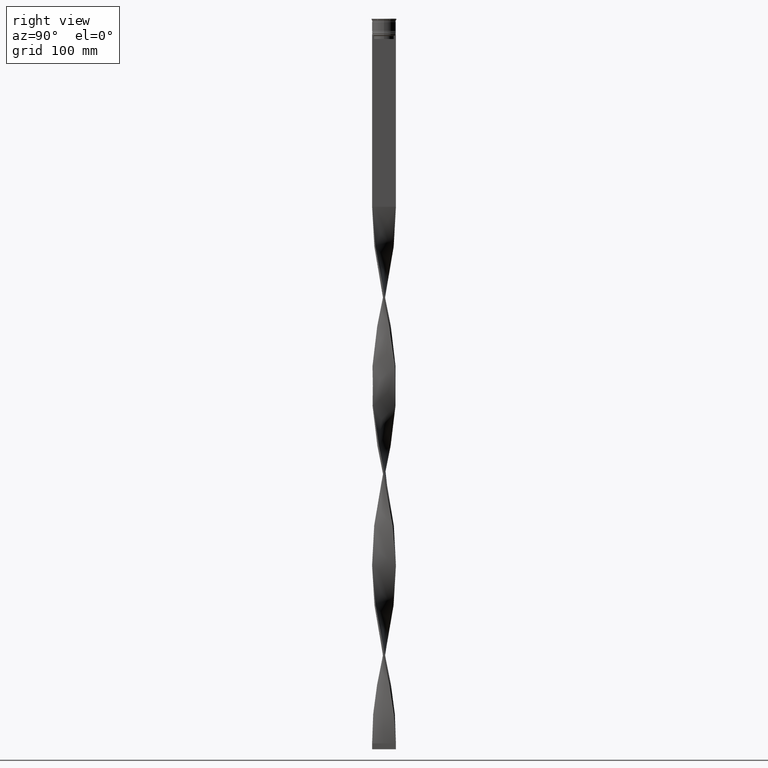
[diagram: clean part render]
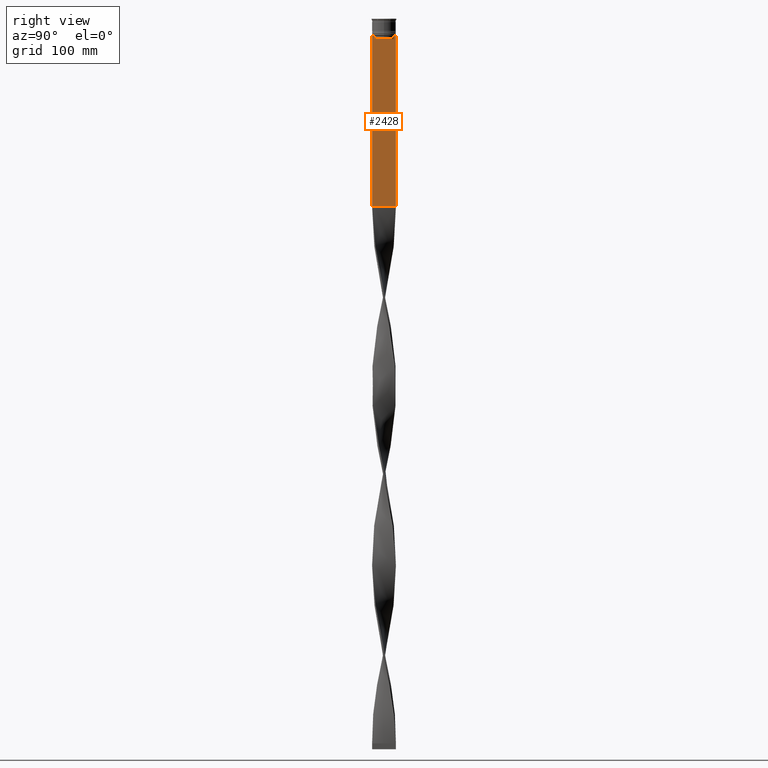
[diagram: same view with one face highlighted and labeled with its STEP entity id]
A machine part, right view. The second image highlights one B-rep face of the part: STEP entity #2428.
In plain terms, the highlighted planar face has unit normal (-1, 0, 0).
Its self-contained STEP definition (entity closure, byte-faithful):
#74 = EDGE_CURVE ( 'NONE', #860, #125, #2950, .T. ) ;
#96 = CARTESIAN_POINT ( 'NONE',  ( 0.7500000000000001110, -10.00000000000000533, -14.00000000000000178 ) ) ;
#119 = CARTESIAN_POINT ( 'NONE',  ( 0.7500000000000001110, -8.366450860430608927, -17.00000000000000000 ) ) ;
#125 = VERTEX_POINT ( 'NONE', #1736 ) ;
#173 = DIRECTION ( 'NONE',  ( 0.000000000000000000, 0.000000000000000000, 1.000000000000000000 ) ) ;
#194 = LINE ( 'NONE', #4341, #4361 ) ;
#202 = CARTESIAN_POINT ( 'NONE',  ( 0.7500000000000002220, 9.999999999999998224, -157.9999999999999716 ) ) ;
#226 = CARTESIAN_POINT ( 'NONE',  ( 0.7500000000000001110, -10.00000000000000533, -14.00000000000000178 ) ) ;
#366 = VECTOR ( 'NONE', #407, 1000.000000000000000 ) ;
#388 = CARTESIAN_POINT ( 'NONE',  ( 0.7500000000000001110, -8.533766903463440912, -14.33335220807192023 ) ) ;
#407 = DIRECTION ( 'NONE',  ( 0.000000000000000000, -1.000000000000000000, 0.000000000000000000 ) ) ;
#408 = DIRECTION ( 'NONE',  ( -0.000000000000000000, -0.000000000000000000, 1.000000000000000000 ) ) ;
#439 = EDGE_CURVE ( 'NONE', #1191, #2738, #194, .T. ) ;
#521 = VECTOR ( 'NONE', #3287, 1000.000000000000000 ) ;
#615 = CARTESIAN_POINT ( 'NONE',  ( 0.7500000000000001110, 8.533766897779925031, -14.33335221373273605 ) ) ;
#678 = DIRECTION ( 'NONE',  ( 0.000000000000000000, 1.000000000000000000, 0.000000000000000000 ) ) ;
#757 = LINE ( 'NONE', #2183, #366 ) ;
#758 = DIRECTION ( 'NONE',  ( 0.000000000000000000, 0.000000000000000000, -1.000000000000000000 ) ) ;
#767 = LINE ( 'NONE', #3598, #2229 ) ;
#773 = EDGE_CURVE ( 'NONE', #1929, #860, #767, .T. ) ;
#860 = VERTEX_POINT ( 'NONE', #1771 ) ;
#867 = PLANE ( 'NONE',  #1417 ) ;
#921 = DIRECTION ( 'NONE',  ( -1.000000000000000000, 0.000000000000000000, 0.000000000000000000 ) ) ;
#1011 = EDGE_CURVE ( 'NONE', #4220, #1817, #757, .T. ) ;
#1136 = CARTESIAN_POINT ( 'NONE',  ( 0.7500000000000001110, 9.999999999999998224, 6.056171120131581098 ) ) ;
#1140 = VECTOR ( 'NONE', #678, 1000.000000000000000 ) ;
#1185 = CARTESIAN_POINT ( 'NONE',  ( 0.7500000000000001110, -9.871550030263739117, -14.00000000000000178 ) ) ;
#1188 = DIRECTION ( 'NONE',  ( 0.000000000000000000, -1.000000000000000000, 0.000000000000000000 ) ) ;
#1191 = VERTEX_POINT ( 'NONE', #1185 ) ;
#1198 = ORIENTED_EDGE ( 'NONE', *, *, #2625, .T. ) ;
#1363 = CARTESIAN_POINT ( 'NONE',  ( 0.7500000000000001110, 9.999999999999998224, -14.00000000000000178 ) ) ;
#1417 = AXIS2_PLACEMENT_3D ( 'NONE', #1591, #921, #173 ) ;
#1490 = VECTOR ( 'NONE', #758, 1000.000000000000000 ) ;
#1512 = CARTESIAN_POINT ( 'NONE',  ( 0.7500000000000001110, -10.00000000000000533, 6.056171120131581098 ) ) ;
#1581 = LINE ( 'NONE', #96, #2892 ) ;
#1591 = CARTESIAN_POINT ( 'NONE',  ( 0.7500000000000001110, -10.00000000000000533, 6.056171120131581098 ) ) ;
#1640 = EDGE_CURVE ( 'NONE', #125, #4220, #1963, .T. ) ;
#1674 = CARTESIAN_POINT ( 'NONE',  ( 0.7500000000000001110, -8.366450860430608927, -14.50000000000000000 ) ) ;
#1736 = CARTESIAN_POINT ( 'NONE',  ( 0.7500000000000001110, 8.366450860430608927, -14.50000000000000000 ) ) ;
#1748 = EDGE_CURVE ( 'NONE', #3025, #1929, #1581, .T. ) ;
#1764 = DIRECTION ( 'NONE',  ( 0.000000000000000000, -1.000000000000000000, 0.000000000000000000 ) ) ;
#1771 = CARTESIAN_POINT ( 'NONE',  ( 0.7500000000000001110, 8.868342573446296839, -14.00000000000000178 ) ) ;
#1815 = CARTESIAN_POINT ( 'NONE',  ( 0.7500000000000001110, -8.701063080777121428, -14.16668447713511725 ) ) ;
#1817 = VERTEX_POINT ( 'NONE', #119 ) ;
#1837 = EDGE_CURVE ( 'NONE', #2738, #2427, #2993, .T. ) ;
#1840 = CARTESIAN_POINT ( 'NONE',  ( 0.7500000000000001110, -8.868342573446296839, -14.00000000000000178 ) ) ;
#1876 = CARTESIAN_POINT ( 'NONE',  ( 0.7500000000000001110, 8.366450860430608927, 0.000000000000000000 ) ) ;
#1929 = VERTEX_POINT ( 'NONE', #4053 ) ;
#1945 = FACE_OUTER_BOUND ( 'NONE', #3425, .T. ) ;
#1963 = LINE ( 'NONE', #1876, #521 ) ;
#2019 = CARTESIAN_POINT ( 'NONE',  ( 0.7500000000000001110, -10.00000000000000533, -157.9999999999999716 ) ) ;
#2059 = ORIENTED_EDGE ( 'NONE', *, *, #439, .T. ) ;
#2076 = ORIENTED_EDGE ( 'NONE', *, *, #1748, .T. ) ;
#2088 = CARTESIAN_POINT ( 'NONE',  ( 0.7500000000000001110, -8.868342573446296839, -14.00000000000000178 ) ) ;
#2089 = VECTOR ( 'NONE', #408, 1000.000000000000000 ) ;
#2111 = CARTESIAN_POINT ( 'NONE',  ( 0.7500000000000001110, 8.366450860430608927, -14.50000000000000000 ) ) ;
#2119 = CARTESIAN_POINT ( 'NONE',  ( 0.7500000000000001110, -8.366450860430608927, -14.50000000000000000 ) ) ;
#2183 = CARTESIAN_POINT ( 'NONE',  ( 0.7500000000000001110, 8.400000000000003908, -17.00000000000000000 ) ) ;
#2184 = CARTESIAN_POINT ( 'NONE',  ( 0.7500000000000001110, -8.366450860430608927, 0.000000000000000000 ) ) ;
#2229 = VECTOR ( 'NONE', #3510, 1000.000000000000000 ) ;
#2248 = ORIENTED_EDGE ( 'NONE', *, *, #1640, .T. ) ;
#2368 = CARTESIAN_POINT ( 'NONE',  ( 0.7500000000000001110, 8.701063075415250481, -14.16668448247791545 ) ) ;
#2427 = VERTEX_POINT ( 'NONE', #2019 ) ;
#2428 = ADVANCED_FACE ( 'NONE', ( #1945 ), #867, .F. ) ;
#2432 = CARTESIAN_POINT ( 'NONE',  ( 0.7500000000000001110, 8.868342573446296839, -14.00000000000000178 ) ) ;
#2503 = VECTOR ( 'NONE', #1764, 1000.000000000000000 ) ;
#2509 = ORIENTED_EDGE ( 'NONE', *, *, #1837, .T. ) ;
#2546 = LINE ( 'NONE', #2184, #2089 ) ;
#2620 = EDGE_CURVE ( 'NONE', #3025, #2854, #3540, .T. ) ;
#2625 = EDGE_CURVE ( 'NONE', #1817, #4147, #2546, .T. ) ;
#2697 = ORIENTED_EDGE ( 'NONE', *, *, #4350, .T. ) ;
#2738 = VERTEX_POINT ( 'NONE', #226 ) ;
#2741 = LINE ( 'NONE', #3940, #1140 ) ;
#2759 = ORIENTED_EDGE ( 'NONE', *, *, #2620, .F. ) ;
#2854 = VERTEX_POINT ( 'NONE', #202 ) ;
#2892 = VECTOR ( 'NONE', #1188, 1000.000000000000000 ) ;
#2930 = DIRECTION ( 'NONE',  ( 0.000000000000000000, -1.000000000000000000, 0.000000000000000000 ) ) ;
#2949 = ORIENTED_EDGE ( 'NONE', *, *, #74, .T. ) ;
#2950 = B_SPLINE_CURVE_WITH_KNOTS ( 'NONE', 3,
 ( #2432, #2368, #615, #2111 ),
 .UNSPECIFIED., .F., .F.,
 ( 4, 4 ),
 ( 0.01512225952876174867, 0.01583070519299695222 ),
 .UNSPECIFIED. ) ;
#2975 = ORIENTED_EDGE ( 'NONE', *, *, #773, .T. ) ;
#2993 = LINE ( 'NONE', #1512, #3119 ) ;
#3000 = VERTEX_POINT ( 'NONE', #2088 ) ;
#3025 = VERTEX_POINT ( 'NONE', #1363 ) ;
#3119 = VECTOR ( 'NONE', #4401, 1000.000000000000000 ) ;
#3286 = ORIENTED_EDGE ( 'NONE', *, *, #1011, .T. ) ;
#3287 = DIRECTION ( 'NONE',  ( 0.000000000000000000, 0.000000000000000000, -1.000000000000000000 ) ) ;
#3425 = EDGE_LOOP ( 'NONE', ( #2975, #2949, #2248, #3286, #1198, #3650, #2697, #2059, #2509, #3681, #2759, #2076 ) ) ;
#3446 = EDGE_CURVE ( 'NONE', #2427, #2854, #2741, .T. ) ;
#3510 = DIRECTION ( 'NONE',  ( 0.000000000000000000, -1.000000000000000000, 0.000000000000000000 ) ) ;
#3540 = LINE ( 'NONE', #1136, #1490 ) ;
#3592 = CARTESIAN_POINT ( 'NONE',  ( 0.7500000000000001110, -10.00000000000000533, -14.00000000000000178 ) ) ;
#3598 = CARTESIAN_POINT ( 'NONE',  ( 0.7500000000000001110, -10.00000000000000533, -14.00000000000000178 ) ) ;
#3650 = ORIENTED_EDGE ( 'NONE', *, *, #4381, .T. ) ;
#3681 = ORIENTED_EDGE ( 'NONE', *, *, #3446, .T. ) ;
#3907 = LINE ( 'NONE', #3592, #2503 ) ;
#3940 = CARTESIAN_POINT ( 'NONE',  ( 0.7500000000000001110, -10.00000000000000533, -157.9999999999999716 ) ) ;
#4053 = CARTESIAN_POINT ( 'NONE',  ( 0.7500000000000001110, 9.871550030263739117, -14.00000000000000178 ) ) ;
#4147 = VERTEX_POINT ( 'NONE', #1674 ) ;
#4197 = B_SPLINE_CURVE_WITH_KNOTS ( 'NONE', 3,
 ( #2119, #388, #1815, #1840 ),
 .UNSPECIFIED., .F., .F.,
 ( 4, 4 ),
 ( 0.03866293624047253963, 0.03937282246709320616 ),
 .UNSPECIFIED. ) ;
#4220 = VERTEX_POINT ( 'NONE', #4449 ) ;
#4341 = CARTESIAN_POINT ( 'NONE',  ( 0.7500000000000001110, -10.00000000000000533, -14.00000000000000178 ) ) ;
#4350 = EDGE_CURVE ( 'NONE', #3000, #1191, #3907, .T. ) ;
#4361 = VECTOR ( 'NONE', #2930, 1000.000000000000000 ) ;
#4381 = EDGE_CURVE ( 'NONE', #4147, #3000, #4197, .T. ) ;
#4401 = DIRECTION ( 'NONE',  ( 0.000000000000000000, 0.000000000000000000, -1.000000000000000000 ) ) ;
#4449 = CARTESIAN_POINT ( 'NONE',  ( 0.7500000000000001110, 8.366450860430608927, -17.00000000000000000 ) ) ;